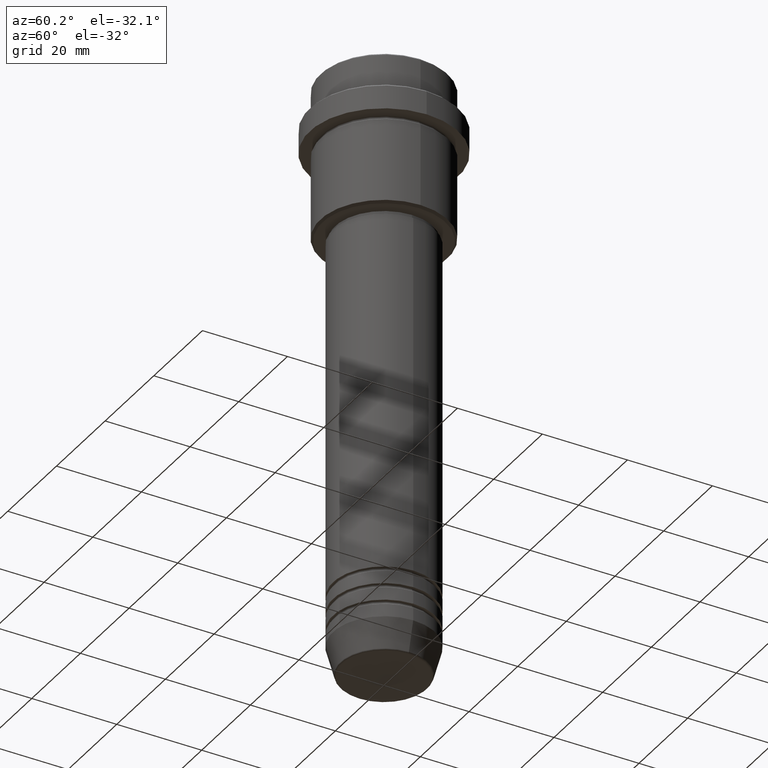
[diagram: clean part render]
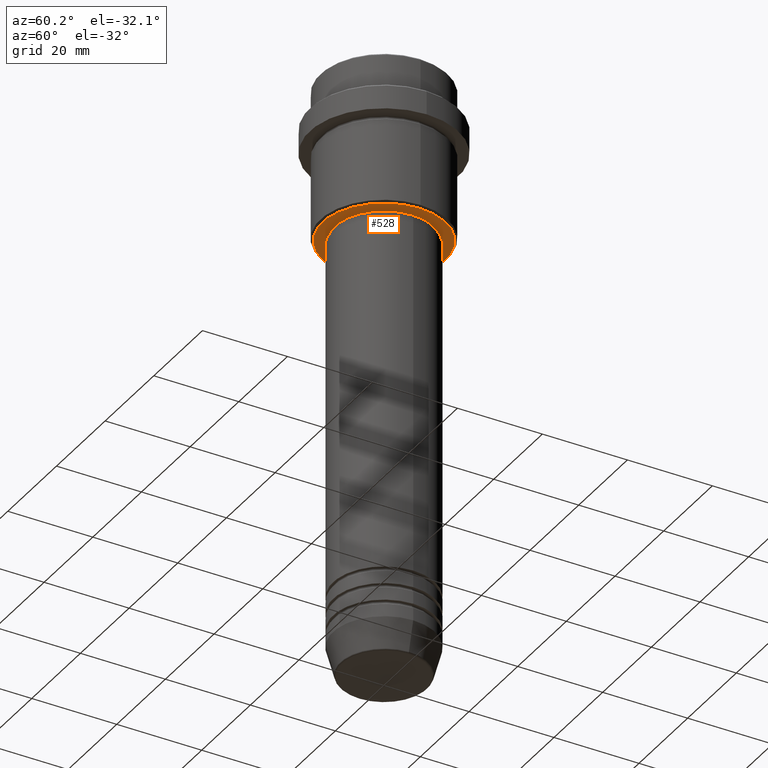
[diagram: same view with one face highlighted and labeled with its STEP entity id]
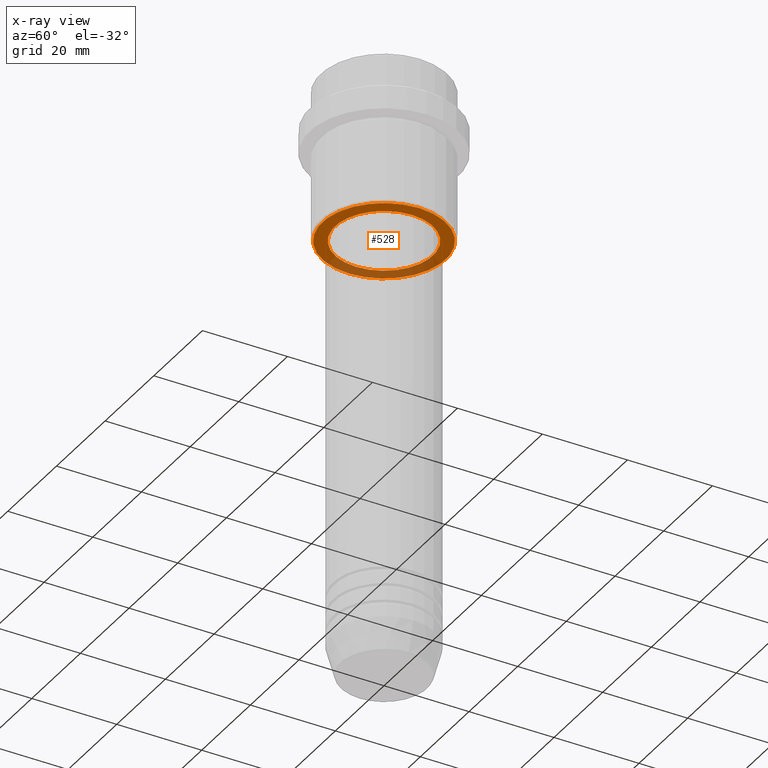
[diagram: x-ray of the same camera — body ghosted, the highlighted face saturated]
A machine part, auxiliary view. The second image highlights one B-rep face of the part: STEP entity #528.
The next image is the same camera in x-ray: the body ghosted, the highlighted face saturated — about 31% of this face is hidden behind the body in this view.
In plain terms, the highlighted planar face has unit normal (0, 0, -1).
Its self-contained STEP definition (entity closure, byte-faithful):
#30 = AXIS2_PLACEMENT_3D ( 'NONE', #1103, #570, #891 ) ;
#55 = ORIENTED_EDGE ( 'NONE', *, *, #1145, .T. ) ;
#64 = DIRECTION ( 'NONE',  ( -0.000000000000000000, -0.000000000000000000, 1.000000000000000000 ) ) ;
#196 = DIRECTION ( 'NONE',  ( 0.000000000000000000, 0.000000000000000000, -1.000000000000000000 ) ) ;
#201 = FACE_BOUND ( 'NONE', #1193, .T. ) ;
#216 = ORIENTED_EDGE ( 'NONE', *, *, #238, .T. ) ;
#238 = EDGE_CURVE ( 'NONE', #966, #281, #1224, .T. ) ;
#281 = VERTEX_POINT ( 'NONE', #608 ) ;
#296 = CARTESIAN_POINT ( 'NONE',  ( -14.50000000000001066, 1.806354028742346591E-15, -35.99999999999999289 ) ) ;
#302 = CIRCLE ( 'NONE', #954, 14.50000000000001066 ) ;
#303 = DIRECTION ( 'NONE',  ( 1.000000000000000000, 0.000000000000000000, 0.000000000000000000 ) ) ;
#325 = CARTESIAN_POINT ( 'NONE',  ( 0.000000000000000000, 0.000000000000000000, -35.99999999999999289 ) ) ;
#516 = AXIS2_PLACEMENT_3D ( 'NONE', #1030, #64, #1375 ) ;
#528 = ADVANCED_FACE ( 'NONE', ( #952, #201 ), #960, .T. ) ;
#538 = CIRCLE ( 'NONE', #587, 11.49999999999999467 ) ;
#570 = DIRECTION ( 'NONE',  ( 0.000000000000000000, 0.000000000000000000, -1.000000000000000000 ) ) ;
#587 = AXIS2_PLACEMENT_3D ( 'NONE', #325, #1290, #303 ) ;
#608 = CARTESIAN_POINT ( 'NONE',  ( -11.49999999999999467, 1.408343819019455781E-15, -35.99999999999999289 ) ) ;
#611 = CARTESIAN_POINT ( 'NONE',  ( 14.50000000000001066, 0.000000000000000000, -35.99999999999999289 ) ) ;
#639 = EDGE_CURVE ( 'NONE', #281, #966, #538, .T. ) ;
#675 = DIRECTION ( 'NONE',  ( 0.000000000000000000, 0.000000000000000000, -1.000000000000000000 ) ) ;
#770 = CARTESIAN_POINT ( 'NONE',  ( 0.000000000000000000, 15.00000000000000000, -35.99999999999999289 ) ) ;
#840 = ORIENTED_EDGE ( 'NONE', *, *, #639, .T. ) ;
#891 = DIRECTION ( 'NONE',  ( -1.000000000000000000, 0.000000000000000000, 0.000000000000000000 ) ) ;
#921 = AXIS2_PLACEMENT_3D ( 'NONE', #770, #196, #1079 ) ;
#952 = FACE_OUTER_BOUND ( 'NONE', #1211, .T. ) ;
#954 = AXIS2_PLACEMENT_3D ( 'NONE', #1328, #675, #1190 ) ;
#960 = PLANE ( 'NONE',  #921 ) ;
#966 = VERTEX_POINT ( 'NONE', #1255 ) ;
#1030 = CARTESIAN_POINT ( 'NONE',  ( 0.000000000000000000, 0.000000000000000000, -35.99999999999999289 ) ) ;
#1044 = CIRCLE ( 'NONE', #30, 14.50000000000001066 ) ;
#1079 = DIRECTION ( 'NONE',  ( -1.000000000000000000, 0.000000000000000000, -0.000000000000000000 ) ) ;
#1091 = EDGE_CURVE ( 'NONE', #1311, #1337, #1044, .T. ) ;
#1103 = CARTESIAN_POINT ( 'NONE',  ( 0.000000000000000000, 0.000000000000000000, -35.99999999999999289 ) ) ;
#1118 = ORIENTED_EDGE ( 'NONE', *, *, #1091, .T. ) ;
#1145 = EDGE_CURVE ( 'NONE', #1337, #1311, #302, .T. ) ;
#1190 = DIRECTION ( 'NONE',  ( -1.000000000000000000, 0.000000000000000000, 0.000000000000000000 ) ) ;
#1193 = EDGE_LOOP ( 'NONE', ( #216, #840 ) ) ;
#1211 = EDGE_LOOP ( 'NONE', ( #55, #1118 ) ) ;
#1224 = CIRCLE ( 'NONE', #516, 11.49999999999999467 ) ;
#1255 = CARTESIAN_POINT ( 'NONE',  ( 11.49999999999999467, 0.000000000000000000, -35.99999999999999289 ) ) ;
#1290 = DIRECTION ( 'NONE',  ( -0.000000000000000000, -0.000000000000000000, 1.000000000000000000 ) ) ;
#1311 = VERTEX_POINT ( 'NONE', #296 ) ;
#1328 = CARTESIAN_POINT ( 'NONE',  ( 0.000000000000000000, 0.000000000000000000, -35.99999999999999289 ) ) ;
#1337 = VERTEX_POINT ( 'NONE', #611 ) ;
#1375 = DIRECTION ( 'NONE',  ( 1.000000000000000000, 0.000000000000000000, 0.000000000000000000 ) ) ;